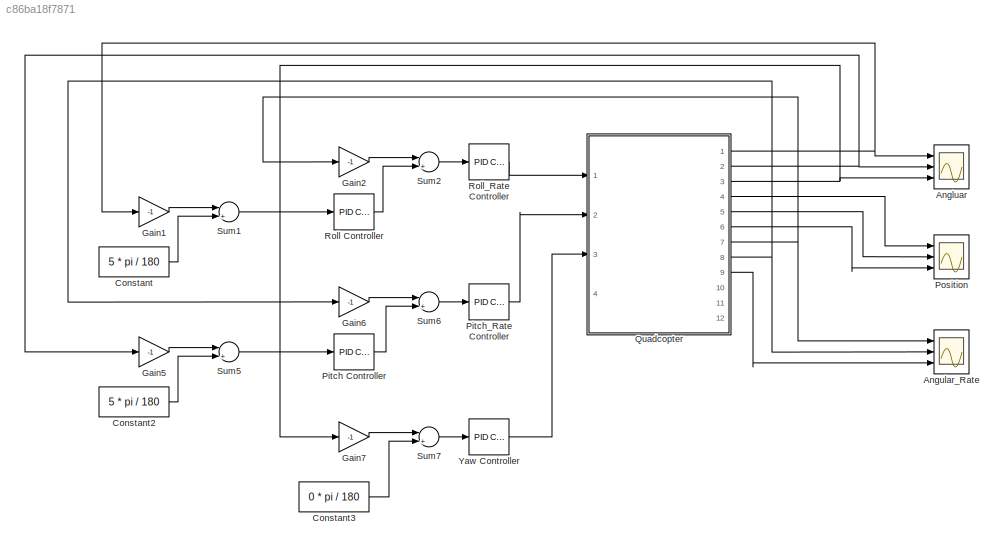
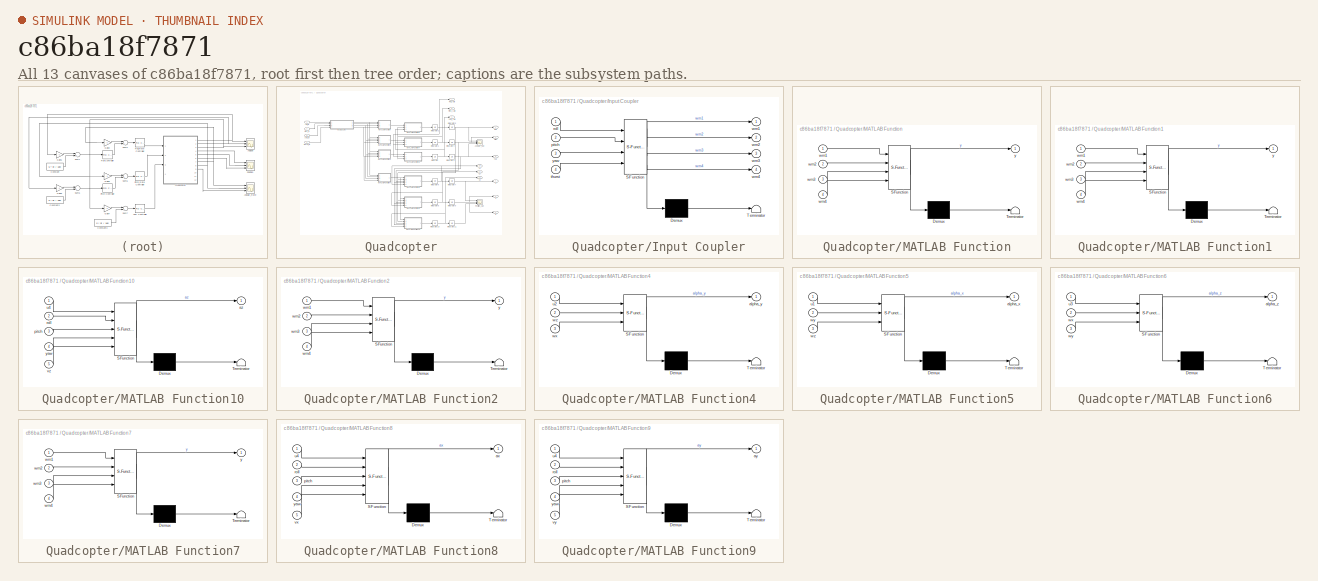
[diagram: thumbnail index - all 13 canvases of the model, root first then tree order]
MODEL slx_c86ba18f7871
KIND model
BLOCK [Scope] Angluar
  Floating = off
  NumInputPorts = 3
  Ports = [3]
  SaveName = ScopeData2
  ShowLegends = off
  YMax = 5~5~5
  YMin = -5~-5~-5
BLOCK [Scope] Angular_Rate
  Floating = off
  NumInputPorts = 3
  Ports = [3]
  SaveName = ScopeData3
  ShowLegends = off
  YMax = 5~5~5
  YMin = -5~-5~-5
  ZoomMode = yonly
BLOCK [Constant] Constant
  Value = 5 * pi / 180
BLOCK [Constant] Constant2
  Value = 5 * pi / 180
BLOCK [Constant] Constant3
  Value = 0 * pi / 180
BLOCK [Gain] Gain1
  Gain = -1
  OutDataTypeStr = Inherit: Inherit via internal rule
  ParamDataTypeStr = Inherit: Inherit via internal rule
  SaturateOnIntegerOverflow = off
BLOCK [Gain] Gain2
  Gain = -1
  OutDataTypeStr = Inherit: Inherit via internal rule
  ParamDataTypeStr = Inherit: Inherit via internal rule
  SaturateOnIntegerOverflow = off
BLOCK [Gain] Gain5
  Gain = -1
  OutDataTypeStr = Inherit: Inherit via internal rule
  ParamDataTypeStr = Inherit: Inherit via internal rule
  SaturateOnIntegerOverflow = off
BLOCK [Gain] Gain6
  Gain = -1
  OutDataTypeStr = Inherit: Inherit via internal rule
  ParamDataTypeStr = Inherit: Inherit via internal rule
  SaturateOnIntegerOverflow = off
BLOCK [Gain] Gain7
  Gain = -1
  OutDataTypeStr = Inherit: Inherit via internal rule
  ParamDataTypeStr = Inherit: Inherit via internal rule
  SaturateOnIntegerOverflow = off
BLOCK [Reference] Pitch Controller  REF=simulink/Continuous/PID Controller
  AntiWindupMode = none
  Controller = PID
  D = 0
  DOutDataTypeStr = Inherit: Inherit via internal rule
  DOutMax = []
  DOutMin = []
  DParamDataTypeStr = Inherit: Inherit via internal rule
  DParamMax = []
  DParamMin = []
  DifferentiatorICPrevScaledInput = 0
  DifferentiatorOutDataTypeStr = Inherit: Inherit via internal rule
  DifferentiatorOutMax = []
  DifferentiatorOutMin = []
  ExternalReset = none
  FilterContinuousStateAttributes = ''
  FilterMethod = Forward Euler
  FilterOutDataTypeStr = Inherit: Inherit via internal rule
  FilterOutMax = []
  FilterOutMin = []
  FilterRTWStateStorageClass = Auto
  FilterStateMustResolveToSignalObject = off
  Form = Parallel
  I = 0.05
  IOutDataTypeStr = Inherit: Inherit via internal rule
  IOutMax = []
  IOutMin = []
  IParamDataTypeStr = Inherit: Inherit via internal rule
  IParamMax = []
  IParamMin = []
  IgnoreLimit = off
  InitialConditionForFilter = 0
  InitialConditionForIntegrator = 0
  InitialConditionSource = internal
  IntegratorContinuousStateAttributes = ''
  IntegratorMethod = Forward Euler
  IntegratorOutDataTypeStr = Inherit: Inherit via internal rule
  IntegratorOutMax = []
  IntegratorOutMin = []
  IntegratorRTWStateStorageClass = Auto
  IntegratorStateMustResolveToSignalObject = off
  Kb = 1
  KbOutDataTypeStr = Inherit: Inherit via internal rule
  KbOutMax = []
  KbOutMin = []
  KbParamDataTypeStr = Inherit: Inherit via internal rule
  KbParamMax = []
  KbParamMin = []
  Kt = 1
  KtOutDataTypeStr = Inherit: Inherit via internal rule
  KtOutMax = []
  KtOutMin = []
  KtParamDataTypeStr = Inherit: Inherit via internal rule
  KtParamMax = []
  KtParamMin = []
  LimitOutput = off
  LinearizeAsGain = on
  LockScale = off
  LowerSaturationLimit = -inf
  N = 100
  NOutDataTypeStr = Inherit: Inherit via internal rule
  NOutMax = []
  NOutMin = []
  NParamDataTypeStr = Inherit: Inherit via internal rule
  NParamMax = []
  NParamMin = []
  P = 10
  POutDataTypeStr = Inherit: Inherit via internal rule
  POutMax = []
  POutMin = []
  PParamDataTypeStr = Inherit: Inherit via internal rule
  PParamMax = []
  PParamMin = []
  Ports = [1, 1]
  RndMeth = Floor
  SampleTime = -1
  SaturateOnIntegerOverflow = off
  SaturationOutDataTypeStr = Inherit: Same as input
  SaturationOutMax = []
  SaturationOutMin = []
  SourceBlock = simulink/Continuous/PID Controller
  SourceType = PID 1dof
  SumAccumDataTypeStr = Inherit: Inherit via internal rule
  SumDAccumDataTypeStr = Inherit: Inherit via internal rule
  SumDOutDataTypeStr = Inherit: Inherit via internal rule
  SumDOutMax = []
  SumDOutMin = []
  SumI1AccumDataTypeStr = Inherit: Inherit via internal rule
  SumI1OutDataTypeStr = Inherit: Inherit via internal rule
  SumI1OutMax = []
  SumI1OutMin = []
  SumI2AccumDataTypeStr = Inherit: Inherit via internal rule
  SumI2OutDataTypeStr = Inherit: Inherit via internal rule
  SumI2OutMax = []
  SumI2OutMin = []
  SumI3AccumDataTypeStr = Inherit: Inherit via internal rule
  SumI3OutDataTypeStr = Inherit: Inherit via internal rule
  SumI3OutMax = []
  SumI3OutMin = []
  SumOutDataTypeStr = Inherit: Inherit via internal rule
  SumOutMax = []
  SumOutMin = []
  TimeDomain = Continuous-time
  TrackingMode = off
  UpperSaturationLimit = inf
  UseFilter = on
  ZeroCross = on
BLOCK [Reference] Pitch_Rate Controller  REF=simulink/Continuous/PID Controller
  AntiWindupMode = none
  Controller = PID
  D = 0.1
  DOutDataTypeStr = Inherit: Inherit via internal rule
  DOutMax = []
  DOutMin = []
  DParamDataTypeStr = Inherit: Inherit via internal rule
  DParamMax = []
  DParamMin = []
  DifferentiatorICPrevScaledInput = 0
  DifferentiatorOutDataTypeStr = Inherit: Inherit via internal rule
  DifferentiatorOutMax = []
  DifferentiatorOutMin = []
  ExternalReset = none
  FilterContinuousStateAttributes = ''
  FilterMethod = Forward Euler
  FilterOutDataTypeStr = Inherit: Inherit via internal rule
  FilterOutMax = []
  FilterOutMin = []
  FilterRTWStateStorageClass = Auto
  FilterStateMustResolveToSignalObject = off
  Form = Parallel
  I = 0
  IOutDataTypeStr = Inherit: Inherit via internal rule
  IOutMax = []
  IOutMin = []
  IParamDataTypeStr = Inherit: Inherit via internal rule
  IParamMax = []
  IParamMin = []
  IgnoreLimit = off
  InitialConditionForFilter = 0
  InitialConditionForIntegrator = 0
  InitialConditionSource = internal
  IntegratorContinuousStateAttributes = ''
  IntegratorMethod = Forward Euler
  IntegratorOutDataTypeStr = Inherit: Inherit via internal rule
  IntegratorOutMax = []
  IntegratorOutMin = []
  IntegratorRTWStateStorageClass = Auto
  IntegratorStateMustResolveToSignalObject = off
  Kb = 1
  KbOutDataTypeStr = Inherit: Inherit via internal rule
  KbOutMax = []
  KbOutMin = []
  KbParamDataTypeStr = Inherit: Inherit via internal rule
  KbParamMax = []
  KbParamMin = []
  Kt = 1
  KtOutDataTypeStr = Inherit: Inherit via internal rule
  KtOutMax = []
  KtOutMin = []
  KtParamDataTypeStr = Inherit: Inherit via internal rule
  KtParamMax = []
  KtParamMin = []
  LimitOutput = off
  LinearizeAsGain = on
  LockScale = off
  LowerSaturationLimit = -inf
  N = 100
  NOutDataTypeStr = Inherit: Inherit via internal rule
  NOutMax = []
  NOutMin = []
  NParamDataTypeStr = Inherit: Inherit via internal rule
  NParamMax = []
  NParamMin = []
  P = 1
  POutDataTypeStr = Inherit: Inherit via internal rule
  POutMax = []
  POutMin = []
  PParamDataTypeStr = Inherit: Inherit via internal rule
  PParamMax = []
  PParamMin = []
  Ports = [1, 1]
  RndMeth = Floor
  SampleTime = -1
  SaturateOnIntegerOverflow = off
  SaturationOutDataTypeStr = Inherit: Same as input
  SaturationOutMax = []
  SaturationOutMin = []
  SourceBlock = simulink/Continuous/PID Controller
  SourceType = PID 1dof
  SumAccumDataTypeStr = Inherit: Inherit via internal rule
  SumDAccumDataTypeStr = Inherit: Inherit via internal rule
  SumDOutDataTypeStr = Inherit: Inherit via internal rule
  SumDOutMax = []
  SumDOutMin = []
  SumI1AccumDataTypeStr = Inherit: Inherit via internal rule
  SumI1OutDataTypeStr = Inherit: Inherit via internal rule
  SumI1OutMax = []
  SumI1OutMin = []
  SumI2AccumDataTypeStr = Inherit: Inherit via internal rule
  SumI2OutDataTypeStr = Inherit: Inherit via internal rule
  SumI2OutMax = []
  SumI2OutMin = []
  SumI3AccumDataTypeStr = Inherit: Inherit via internal rule
  SumI3OutDataTypeStr = Inherit: Inherit via internal rule
  SumI3OutMax = []
  SumI3OutMin = []
  SumOutDataTypeStr = Inherit: Inherit via internal rule
  SumOutMax = []
  SumOutMin = []
  TimeDomain = Continuous-time
  TrackingMode = off
  UpperSaturationLimit = inf
  UseFilter = on
  ZeroCross = on
BLOCK [Scope] Position
  Floating = off
  NumInputPorts = 3
  Ports = [3]
  SaveName = ScopeData4
  ShowLegends = off
  YMax = 5~5~5
  YMin = -5~-5~-5
  ZoomMode = yonly
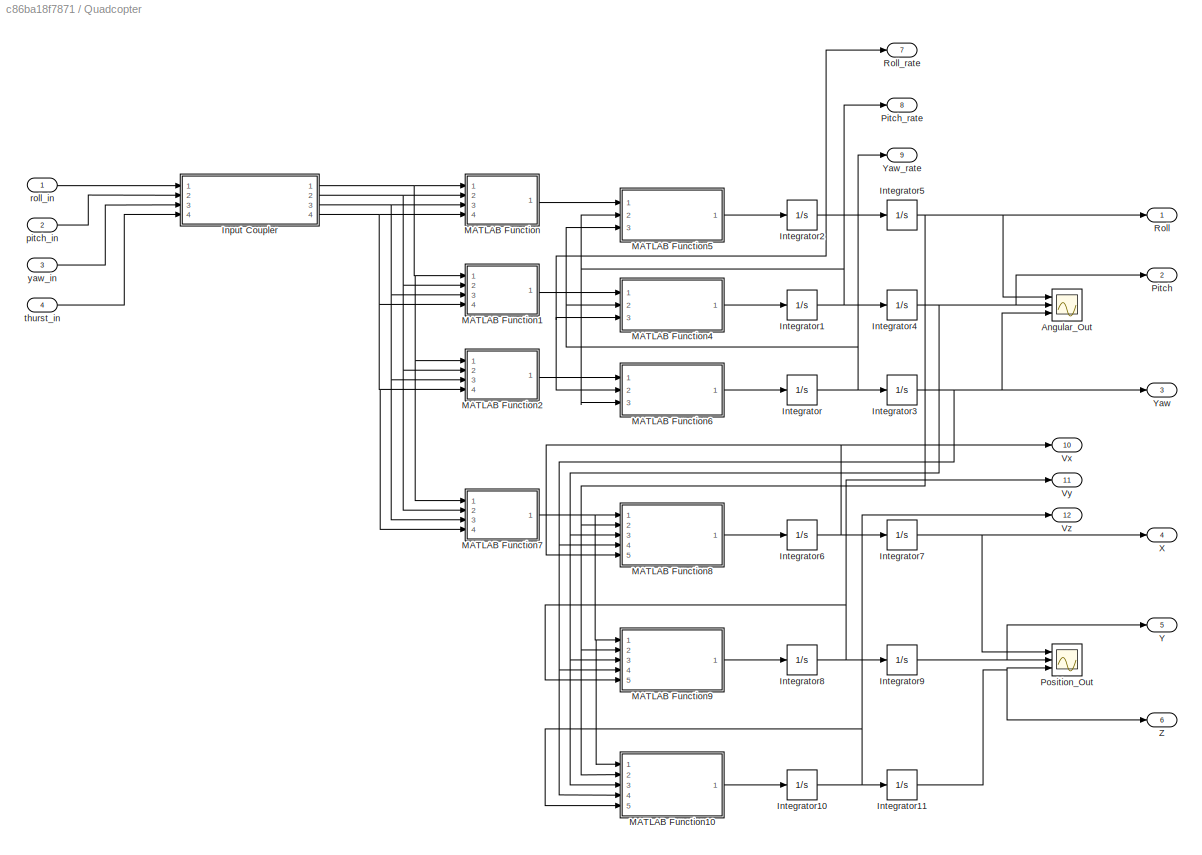
BLOCK [SubSystem] Quadcopter
  Ports = [4, 12]
  RequestExecContextInheritance = off
BLOCK [Scope] Quadcopter/Angular_Out
  Floating = off
  NumInputPorts = 3
  Ports = [3]
  ShowLegends = off
  YMax = 5~5~5
  YMin = -5~-5~-5
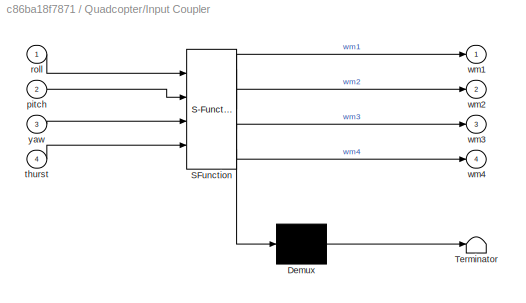
BLOCK [SubSystem] Quadcopter/Input Coupler
  ErrorFcn = Stateflow.Translate.translate
  PermitHierarchicalResolution = ExplicitOnly
  Ports = [4, 4]
  RequestExecContextInheritance = off
  SFBlockType = MATLAB Function
  TreatAsAtomicUnit = on
BLOCK [Demux] Quadcopter/Input Coupler/ Demux 
  Outputs = 1
  Ports = [1, 1]
BLOCK [S-Function] Quadcopter/Input Coupler/ SFunction 
  EnableBusSupport = on
  FunctionName = sf_sfun
  PortCounts = [4 5]
  Ports = [4, 5]
  Tag = Stateflow S-Function PID_quad_x_model 4
BLOCK [Terminator] Quadcopter/Input Coupler/ Terminator 
BLOCK [Inport] Quadcopter/Input Coupler/pitch
  IconDisplay = Port number
  Port = 2
BLOCK [Inport] Quadcopter/Input Coupler/roll
  IconDisplay = Port number
BLOCK [Inport] Quadcopter/Input Coupler/thurst
  IconDisplay = Port number
  Port = 4
BLOCK [Outport] Quadcopter/Input Coupler/wm1
  IconDisplay = Port number
BLOCK [Outport] Quadcopter/Input Coupler/wm2
  IconDisplay = Port number
  Port = 2
BLOCK [Outport] Quadcopter/Input Coupler/wm3
  IconDisplay = Port number
  Port = 3
BLOCK [Outport] Quadcopter/Input Coupler/wm4
  IconDisplay = Port number
  Port = 4
BLOCK [Inport] Quadcopter/Input Coupler/yaw
  IconDisplay = Port number
  Port = 3
BLOCK [Integrator] Quadcopter/Integrator
  Ports = [1, 1]
BLOCK [Integrator] Quadcopter/Integrator1
  Ports = [1, 1]
BLOCK [Integrator] Quadcopter/Integrator10
  Ports = [1, 1]
BLOCK [Integrator] Quadcopter/Integrator11
  Ports = [1, 1]
BLOCK [Integrator] Quadcopter/Integrator2
  Ports = [1, 1]
BLOCK [Integrator] Quadcopter/Integrator3
  Ports = [1, 1]
BLOCK [Integrator] Quadcopter/Integrator4
  Ports = [1, 1]
BLOCK [Integrator] Quadcopter/Integrator5
  Ports = [1, 1]
BLOCK [Integrator] Quadcopter/Integrator6
  Ports = [1, 1]
BLOCK [Integrator] Quadcopter/Integrator7
  Ports = [1, 1]
BLOCK [Integrator] Quadcopter/Integrator8
  Ports = [1, 1]
BLOCK [Integrator] Quadcopter/Integrator9
  Ports = [1, 1]
BLOCK [SubSystem] Quadcopter/MATLAB Function
  ErrorFcn = Stateflow.Translate.translate
  PermitHierarchicalResolution = ExplicitOnly
  Ports = [4, 1]
  RequestExecContextInheritance = off
  SFBlockType = MATLAB Function
  TreatAsAtomicUnit = on
BLOCK [Demux] Quadcopter/MATLAB Function/ Demux 
  Outputs = 1
  Ports = [1, 1]
BLOCK [S-Function] Quadcopter/MATLAB Function/ SFunction 
  EnableBusSupport = on
  FunctionName = sf_sfun
  PortCounts = [4 2]
  Ports = [4, 2]
  Tag = Stateflow S-Function PID_quad_x_model 2
BLOCK [Terminator] Quadcopter/MATLAB Function/ Terminator 
BLOCK [Inport] Quadcopter/MATLAB Function/wm1
  IconDisplay = Port number
BLOCK [Inport] Quadcopter/MATLAB Function/wm2
  IconDisplay = Port number
  Port = 2
BLOCK [Inport] Quadcopter/MATLAB Function/wm3
  IconDisplay = Port number
  Port = 3
BLOCK [Inport] Quadcopter/MATLAB Function/wm4
  IconDisplay = Port number
  Port = 4
BLOCK [Outport] Quadcopter/MATLAB Function/y
  IconDisplay = Port number
BLOCK [SubSystem] Quadcopter/MATLAB Function1
  ErrorFcn = Stateflow.Translate.translate
  PermitHierarchicalResolution = ExplicitOnly
  Ports = [4, 1]
  RequestExecContextInheritance = off
  SFBlockType = MATLAB Function
  TreatAsAtomicUnit = on
BLOCK [Demux] Quadcopter/MATLAB Function1/ Demux 
  Outputs = 1
  Ports = [1, 1]
BLOCK [S-Function] Quadcopter/MATLAB Function1/ SFunction 
  EnableBusSupport = on
  FunctionName = sf_sfun
  PortCounts = [4 2]
  Ports = [4, 2]
  Tag = Stateflow S-Function PID_quad_x_model 1
BLOCK [Terminator] Quadcopter/MATLAB Function1/ Terminator 
BLOCK [Inport] Quadcopter/MATLAB Function1/wm1
  IconDisplay = Port number
BLOCK [Inport] Quadcopter/MATLAB Function1/wm2
  IconDisplay = Port number
  Port = 2
BLOCK [Inport] Quadcopter/MATLAB Function1/wm3
  IconDisplay = Port number
  Port = 3
BLOCK [Inport] Quadcopter/MATLAB Function1/wm4
  IconDisplay = Port number
  Port = 4
BLOCK [Outport] Quadcopter/MATLAB Function1/y
  IconDisplay = Port number
BLOCK [SubSystem] Quadcopter/MATLAB Function10
  ErrorFcn = Stateflow.Translate.translate
  PermitHierarchicalResolution = ExplicitOnly
  Ports = [5, 1]
  RequestExecContextInheritance = off
  SFBlockType = MATLAB Function
  TreatAsAtomicUnit = on
BLOCK [Demux] Quadcopter/MATLAB Function10/ Demux 
  Outputs = 1
  Ports = [1, 1]
BLOCK [S-Function] Quadcopter/MATLAB Function10/ SFunction 
  EnableBusSupport = on
  FunctionName = sf_sfun
  PortCounts = [5 2]
  Ports = [5, 2]
  Tag = Stateflow S-Function PID_quad_x_model 11
BLOCK [Terminator] Quadcopter/MATLAB Function10/ Terminator 
BLOCK [Outport] Quadcopter/MATLAB Function10/az
  IconDisplay = Port number
BLOCK [Inport] Quadcopter/MATLAB Function10/pitch
  IconDisplay = Port number
  Port = 3
BLOCK [Inport] Quadcopter/MATLAB Function10/roll
  IconDisplay = Port number
  Port = 2
BLOCK [Inport] Quadcopter/MATLAB Function10/u4
  IconDisplay = Port number
BLOCK [Inport] Quadcopter/MATLAB Function10/vz
  IconDisplay = Port number
  Port = 5
BLOCK [Inport] Quadcopter/MATLAB Function10/yaw
  IconDisplay = Port number
  Port = 4
BLOCK [SubSystem] Quadcopter/MATLAB Function2
  ErrorFcn = Stateflow.Translate.translate
  PermitHierarchicalResolution = ExplicitOnly
  Ports = [4, 1]
  RequestExecContextInheritance = off
  SFBlockType = MATLAB Function
  TreatAsAtomicUnit = on
BLOCK [Demux] Quadcopter/MATLAB Function2/ Demux 
  Outputs = 1
  Ports = [1, 1]
BLOCK [S-Function] Quadcopter/MATLAB Function2/ SFunction 
  EnableBusSupport = on
  FunctionName = sf_sfun
  PortCounts = [4 2]
  Ports = [4, 2]
  Tag = Stateflow S-Function PID_quad_x_model 3
BLOCK [Terminator] Quadcopter/MATLAB Function2/ Terminator 
BLOCK [Inport] Quadcopter/MATLAB Function2/wm1
  IconDisplay = Port number
BLOCK [Inport] Quadcopter/MATLAB Function2/wm2
  IconDisplay = Port number
  Port = 2
BLOCK [Inport] Quadcopter/MATLAB Function2/wm3
  IconDisplay = Port number
  Port = 3
BLOCK [Inport] Quadcopter/MATLAB Function2/wm4
  IconDisplay = Port number
  Port = 4
BLOCK [Outport] Quadcopter/MATLAB Function2/y
  IconDisplay = Port number
BLOCK [SubSystem] Quadcopter/MATLAB Function4
  ErrorFcn = Stateflow.Translate.translate
  PermitHierarchicalResolution = ExplicitOnly
  Ports = [3, 1]
  RequestExecContextInheritance = off
  SFBlockType = MATLAB Function
  TreatAsAtomicUnit = on
BLOCK [Demux] Quadcopter/MATLAB Function4/ Demux 
  Outputs = 1
  Ports = [1, 1]
BLOCK [S-Function] Quadcopter/MATLAB Function4/ SFunction 
  EnableBusSupport = on
  FunctionName = sf_sfun
  PortCounts = [3 2]
  Ports = [3, 2]
  Tag = Stateflow S-Function PID_quad_x_model 5
BLOCK [Terminator] Quadcopter/MATLAB Function4/ Terminator 
BLOCK [Outport] Quadcopter/MATLAB Function4/alpha_y
  IconDisplay = Port number
BLOCK [Inport] Quadcopter/MATLAB Function4/u2
  IconDisplay = Port number
BLOCK [Inport] Quadcopter/MATLAB Function4/wx
  IconDisplay = Port number
  Port = 3
BLOCK [Inport] Quadcopter/MATLAB Function4/wz
  IconDisplay = Port number
  Port = 2
BLOCK [SubSystem] Quadcopter/MATLAB Function5
  ErrorFcn = Stateflow.Translate.translate
  PermitHierarchicalResolution = ExplicitOnly
  Ports = [3, 1]
  RequestExecContextInheritance = off
  SFBlockType = MATLAB Function
  TreatAsAtomicUnit = on
BLOCK [Demux] Quadcopter/MATLAB Function5/ Demux 
  Outputs = 1
  Ports = [1, 1]
BLOCK [S-Function] Quadcopter/MATLAB Function5/ SFunction 
  EnableBusSupport = on
  FunctionName = sf_sfun
  PortCounts = [3 2]
  Ports = [3, 2]
  Tag = Stateflow S-Function PID_quad_x_model 6
BLOCK [Terminator] Quadcopter/MATLAB Function5/ Terminator 
BLOCK [Outport] Quadcopter/MATLAB Function5/alpha_x
  IconDisplay = Port number
BLOCK [Inport] Quadcopter/MATLAB Function5/u1
  IconDisplay = Port number
BLOCK [Inport] Quadcopter/MATLAB Function5/wy
  IconDisplay = Port number
  Port = 2
BLOCK [Inport] Quadcopter/MATLAB Function5/wz
  IconDisplay = Port number
  Port = 3
BLOCK [SubSystem] Quadcopter/MATLAB Function6
  ErrorFcn = Stateflow.Translate.translate
  PermitHierarchicalResolution = ExplicitOnly
  Ports = [3, 1]
  RequestExecContextInheritance = off
  SFBlockType = MATLAB Function
  TreatAsAtomicUnit = on
BLOCK [Demux] Quadcopter/MATLAB Function6/ Demux 
  Outputs = 1
  Ports = [1, 1]
BLOCK [S-Function] Quadcopter/MATLAB Function6/ SFunction 
  EnableBusSupport = on
  FunctionName = sf_sfun
  PortCounts = [3 2]
  Ports = [3, 2]
  Tag = Stateflow S-Function PID_quad_x_model 7
BLOCK [Terminator] Quadcopter/MATLAB Function6/ Terminator 
BLOCK [Outport] Quadcopter/MATLAB Function6/alpha_z
  IconDisplay = Port number
BLOCK [Inport] Quadcopter/MATLAB Function6/u3
  IconDisplay = Port number
BLOCK [Inport] Quadcopter/MATLAB Function6/wx
  IconDisplay = Port number
  Port = 2
BLOCK [Inport] Quadcopter/MATLAB Function6/wy
  IconDisplay = Port number
  Port = 3
BLOCK [SubSystem] Quadcopter/MATLAB Function7
  ErrorFcn = Stateflow.Translate.translate
  PermitHierarchicalResolution = ExplicitOnly
  Ports = [4, 1]
  RequestExecContextInheritance = off
  SFBlockType = MATLAB Function
  TreatAsAtomicUnit = on
BLOCK [Demux] Quadcopter/MATLAB Function7/ Demux 
  Outputs = 1
  Ports = [1, 1]
BLOCK [S-Function] Quadcopter/MATLAB Function7/ SFunction 
  EnableBusSupport = on
  FunctionName = sf_sfun
  PortCounts = [4 2]
  Ports = [4, 2]
  Tag = Stateflow S-Function PID_quad_x_model 8
BLOCK [Terminator] Quadcopter/MATLAB Function7/ Terminator 
BLOCK [Inport] Quadcopter/MATLAB Function7/wm1
  IconDisplay = Port number
BLOCK [Inport] Quadcopter/MATLAB Function7/wm2
  IconDisplay = Port number
  Port = 2
BLOCK [Inport] Quadcopter/MATLAB Function7/wm3
  IconDisplay = Port number
  Port = 3
BLOCK [Inport] Quadcopter/MATLAB Function7/wm4
  IconDisplay = Port number
  Port = 4
BLOCK [Outport] Quadcopter/MATLAB Function7/y
  IconDisplay = Port number
BLOCK [SubSystem] Quadcopter/MATLAB Function8
  ErrorFcn = Stateflow.Translate.translate
  PermitHierarchicalResolution = ExplicitOnly
  Ports = [5, 1]
  RequestExecContextInheritance = off
  SFBlockType = MATLAB Function
  TreatAsAtomicUnit = on
BLOCK [Demux] Quadcopter/MATLAB Function8/ Demux 
  Outputs = 1
  Ports = [1, 1]
BLOCK [S-Function] Quadcopter/MATLAB Function8/ SFunction 
  EnableBusSupport = on
  FunctionName = sf_sfun
  PortCounts = [5 2]
  Ports = [5, 2]
  Tag = Stateflow S-Function PID_quad_x_model 9
BLOCK [Terminator] Quadcopter/MATLAB Function8/ Terminator 
BLOCK [Outport] Quadcopter/MATLAB Function8/ax
  IconDisplay = Port number
BLOCK [Inport] Quadcopter/MATLAB Function8/pitch
  IconDisplay = Port number
  Port = 3
BLOCK [Inport] Quadcopter/MATLAB Function8/roll
  IconDisplay = Port number
  Port = 2
BLOCK [Inport] Quadcopter/MATLAB Function8/u4
  IconDisplay = Port number
BLOCK [Inport] Quadcopter/MATLAB Function8/vx
  IconDisplay = Port number
  Port = 5
BLOCK [Inport] Quadcopter/MATLAB Function8/yaw
  IconDisplay = Port number
  Port = 4
BLOCK [SubSystem] Quadcopter/MATLAB Function9
  ErrorFcn = Stateflow.Translate.translate
  PermitHierarchicalResolution = ExplicitOnly
  Ports = [5, 1]
  RequestExecContextInheritance = off
  SFBlockType = MATLAB Function
  TreatAsAtomicUnit = on
BLOCK [Demux] Quadcopter/MATLAB Function9/ Demux 
  Outputs = 1
  Ports = [1, 1]
BLOCK [S-Function] Quadcopter/MATLAB Function9/ SFunction 
  EnableBusSupport = on
  FunctionName = sf_sfun
  PortCounts = [5 2]
  Ports = [5, 2]
  Tag = Stateflow S-Function PID_quad_x_model 10
BLOCK [Terminator] Quadcopter/MATLAB Function9/ Terminator 
BLOCK [Outport] Quadcopter/MATLAB Function9/ay
  IconDisplay = Port number
BLOCK [Inport] Quadcopter/MATLAB Function9/pitch
  IconDisplay = Port number
  Port = 3
BLOCK [Inport] Quadcopter/MATLAB Function9/roll
  IconDisplay = Port number
  Port = 2
BLOCK [Inport] Quadcopter/MATLAB Function9/u4
  IconDisplay = Port number
BLOCK [Inport] Quadcopter/MATLAB Function9/vy
  IconDisplay = Port number
  Port = 5
BLOCK [Inport] Quadcopter/MATLAB Function9/yaw
  IconDisplay = Port number
  Port = 4
BLOCK [Outport] Quadcopter/Pitch
  IconDisplay = Port number
  Port = 2
BLOCK [Outport] Quadcopter/Pitch_rate
  IconDisplay = Port number
  Port = 8
BLOCK [Scope] Quadcopter/Position_Out 
  Floating = off
  NumInputPorts = 3
  Ports = [3]
  SaveName = ScopeData1
  ShowLegends = off
  YMax = 5~5~5
  YMin = -5~-5~-5
BLOCK [Outport] Quadcopter/Roll
  IconDisplay = Port number
BLOCK [Outport] Quadcopter/Roll_rate
  IconDisplay = Port number
  Port = 7
BLOCK [Outport] Quadcopter/Vx
  IconDisplay = Port number
  Port = 10
BLOCK [Outport] Quadcopter/Vy
  IconDisplay = Port number
  Port = 11
BLOCK [Outport] Quadcopter/Vz
  IconDisplay = Port number
  Port = 12
BLOCK [Outport] Quadcopter/X
  IconDisplay = Port number
  Port = 4
BLOCK [Outport] Quadcopter/Y
  IconDisplay = Port number
  Port = 5
BLOCK [Outport] Quadcopter/Yaw
  IconDisplay = Port number
  Port = 3
BLOCK [Outport] Quadcopter/Yaw_rate
  IconDisplay = Port number
  Port = 9
BLOCK [Outport] Quadcopter/Z
  IconDisplay = Port number
  Port = 6
BLOCK [Inport] Quadcopter/pitch_in
  IconDisplay = Port number
  Port = 2
BLOCK [Inport] Quadcopter/roll_in
  IconDisplay = Port number
BLOCK [Inport] Quadcopter/thurst_in
  IconDisplay = Port number
  Port = 4
BLOCK [Inport] Quadcopter/yaw_in
  IconDisplay = Port number
  Port = 3
BLOCK [Reference] Roll Controller  REF=simulink/Continuous/PID Controller
  AntiWindupMode = none
  Controller = PID
  D = 0
  DOutDataTypeStr = Inherit: Inherit via internal rule
  DOutMax = []
  DOutMin = []
  DParamDataTypeStr = Inherit: Inherit via internal rule
  DParamMax = []
  DParamMin = []
  DifferentiatorICPrevScaledInput = 0
  DifferentiatorOutDataTypeStr = Inherit: Inherit via internal rule
  DifferentiatorOutMax = []
  DifferentiatorOutMin = []
  ExternalReset = none
  FilterContinuousStateAttributes = ''
  FilterMethod = Forward Euler
  FilterOutDataTypeStr = Inherit: Inherit via internal rule
  FilterOutMax = []
  FilterOutMin = []
  FilterRTWStateStorageClass = Auto
  FilterStateMustResolveToSignalObject = off
  Form = Parallel
  I = 0.05
  IOutDataTypeStr = Inherit: Inherit via internal rule
  IOutMax = []
  IOutMin = []
  IParamDataTypeStr = Inherit: Inherit via internal rule
  IParamMax = []
  IParamMin = []
  IgnoreLimit = off
  InitialConditionForFilter = 0
  InitialConditionForIntegrator = 0
  InitialConditionSource = internal
  IntegratorContinuousStateAttributes = ''
  IntegratorMethod = Forward Euler
  IntegratorOutDataTypeStr = Inherit: Inherit via internal rule
  IntegratorOutMax = []
  IntegratorOutMin = []
  IntegratorRTWStateStorageClass = Auto
  IntegratorStateMustResolveToSignalObject = off
  Kb = 1
  KbOutDataTypeStr = Inherit: Inherit via internal rule
  KbOutMax = []
  KbOutMin = []
  KbParamDataTypeStr = Inherit: Inherit via internal rule
  KbParamMax = []
  KbParamMin = []
  Kt = 1
  KtOutDataTypeStr = Inherit: Inherit via internal rule
  KtOutMax = []
  KtOutMin = []
  KtParamDataTypeStr = Inherit: Inherit via internal rule
  KtParamMax = []
  KtParamMin = []
  LimitOutput = off
  LinearizeAsGain = on
  LockScale = off
  LowerSaturationLimit = -inf
  N = 100
  NOutDataTypeStr = Inherit: Inherit via internal rule
  NOutMax = []
  NOutMin = []
  NParamDataTypeStr = Inherit: Inherit via internal rule
  NParamMax = []
  NParamMin = []
  P = 10
  POutDataTypeStr = Inherit: Inherit via internal rule
  POutMax = []
  POutMin = []
  PParamDataTypeStr = Inherit: Inherit via internal rule
  PParamMax = []
  PParamMin = []
  Ports = [1, 1]
  RndMeth = Floor
  SampleTime = -1
  SaturateOnIntegerOverflow = off
  SaturationOutDataTypeStr = Inherit: Same as input
  SaturationOutMax = []
  SaturationOutMin = []
  SourceBlock = simulink/Continuous/PID Controller
  SourceType = PID 1dof
  SumAccumDataTypeStr = Inherit: Inherit via internal rule
  SumDAccumDataTypeStr = Inherit: Inherit via internal rule
  SumDOutDataTypeStr = Inherit: Inherit via internal rule
  SumDOutMax = []
  SumDOutMin = []
  SumI1AccumDataTypeStr = Inherit: Inherit via internal rule
  SumI1OutDataTypeStr = Inherit: Inherit via internal rule
  SumI1OutMax = []
  SumI1OutMin = []
  SumI2AccumDataTypeStr = Inherit: Inherit via internal rule
  SumI2OutDataTypeStr = Inherit: Inherit via internal rule
  SumI2OutMax = []
  SumI2OutMin = []
  SumI3AccumDataTypeStr = Inherit: Inherit via internal rule
  SumI3OutDataTypeStr = Inherit: Inherit via internal rule
  SumI3OutMax = []
  SumI3OutMin = []
  SumOutDataTypeStr = Inherit: Inherit via internal rule
  SumOutMax = []
  SumOutMin = []
  TimeDomain = Continuous-time
  TrackingMode = off
  UpperSaturationLimit = inf
  UseFilter = on
  ZeroCross = on
BLOCK [Reference] Roll_Rate Controller  REF=simulink/Continuous/PID Controller
  AntiWindupMode = none
  Controller = PID
  D = 0.1
  DOutDataTypeStr = Inherit: Inherit via internal rule
  DOutMax = []
  DOutMin = []
  DParamDataTypeStr = Inherit: Inherit via internal rule
  DParamMax = []
  DParamMin = []
  DifferentiatorICPrevScaledInput = 0
  DifferentiatorOutDataTypeStr = Inherit: Inherit via internal rule
  DifferentiatorOutMax = []
  DifferentiatorOutMin = []
  ExternalReset = none
  FilterContinuousStateAttributes = ''
  FilterMethod = Forward Euler
  FilterOutDataTypeStr = Inherit: Inherit via internal rule
  FilterOutMax = []
  FilterOutMin = []
  FilterRTWStateStorageClass = Auto
  FilterStateMustResolveToSignalObject = off
  Form = Parallel
  I = 0
  IOutDataTypeStr = Inherit: Inherit via internal rule
  IOutMax = []
  IOutMin = []
  IParamDataTypeStr = Inherit: Inherit via internal rule
  IParamMax = []
  IParamMin = []
  IgnoreLimit = off
  InitialConditionForFilter = 0
  InitialConditionForIntegrator = 0
  InitialConditionSource = internal
  IntegratorContinuousStateAttributes = ''
  IntegratorMethod = Forward Euler
  IntegratorOutDataTypeStr = Inherit: Inherit via internal rule
  IntegratorOutMax = []
  IntegratorOutMin = []
  IntegratorRTWStateStorageClass = Auto
  IntegratorStateMustResolveToSignalObject = off
  Kb = 1
  KbOutDataTypeStr = Inherit: Inherit via internal rule
  KbOutMax = []
  KbOutMin = []
  KbParamDataTypeStr = Inherit: Inherit via internal rule
  KbParamMax = []
  KbParamMin = []
  Kt = 1
  KtOutDataTypeStr = Inherit: Inherit via internal rule
  KtOutMax = []
  KtOutMin = []
  KtParamDataTypeStr = Inherit: Inherit via internal rule
  KtParamMax = []
  KtParamMin = []
  LimitOutput = off
  LinearizeAsGain = on
  LockScale = off
  LowerSaturationLimit = -inf
  N = 100
  NOutDataTypeStr = Inherit: Inherit via internal rule
  NOutMax = []
  NOutMin = []
  NParamDataTypeStr = Inherit: Inherit via internal rule
  NParamMax = []
  NParamMin = []
  P = 1
  POutDataTypeStr = Inherit: Inherit via internal rule
  POutMax = []
  POutMin = []
  PParamDataTypeStr = Inherit: Inherit via internal rule
  PParamMax = []
  PParamMin = []
  Ports = [1, 1]
  RndMeth = Floor
  SampleTime = -1
  SaturateOnIntegerOverflow = off
  SaturationOutDataTypeStr = Inherit: Same as input
  SaturationOutMax = []
  SaturationOutMin = []
  SourceBlock = simulink/Continuous/PID Controller
  SourceType = PID 1dof
  SumAccumDataTypeStr = Inherit: Inherit via internal rule
  SumDAccumDataTypeStr = Inherit: Inherit via internal rule
  SumDOutDataTypeStr = Inherit: Inherit via internal rule
  SumDOutMax = []
  SumDOutMin = []
  SumI1AccumDataTypeStr = Inherit: Inherit via internal rule
  SumI1OutDataTypeStr = Inherit: Inherit via internal rule
  SumI1OutMax = []
  SumI1OutMin = []
  SumI2AccumDataTypeStr = Inherit: Inherit via internal rule
  SumI2OutDataTypeStr = Inherit: Inherit via internal rule
  SumI2OutMax = []
  SumI2OutMin = []
  SumI3AccumDataTypeStr = Inherit: Inherit via internal rule
  SumI3OutDataTypeStr = Inherit: Inherit via internal rule
  SumI3OutMax = []
  SumI3OutMin = []
  SumOutDataTypeStr = Inherit: Inherit via internal rule
  SumOutMax = []
  SumOutMin = []
  TimeDomain = Continuous-time
  TrackingMode = off
  UpperSaturationLimit = inf
  UseFilter = on
  ZeroCross = on
BLOCK [Sum] Sum1
  InputSameDT = off
  Inputs = |++
  OutDataTypeStr = Inherit: Inherit via internal rule
  Ports = [2, 1]
  SaturateOnIntegerOverflow = off
BLOCK [Sum] Sum2
  InputSameDT = off
  Inputs = |++
  OutDataTypeStr = Inherit: Inherit via internal rule
  Ports = [2, 1]
  SaturateOnIntegerOverflow = off
BLOCK [Sum] Sum5
  InputSameDT = off
  Inputs = |++
  OutDataTypeStr = Inherit: Inherit via internal rule
  Ports = [2, 1]
  SaturateOnIntegerOverflow = off
BLOCK [Sum] Sum6
  InputSameDT = off
  Inputs = |++
  OutDataTypeStr = Inherit: Inherit via internal rule
  Ports = [2, 1]
  SaturateOnIntegerOverflow = off
BLOCK [Sum] Sum7
  InputSameDT = off
  Inputs = |++
  OutDataTypeStr = Inherit: Inherit via internal rule
  Ports = [2, 1]
  SaturateOnIntegerOverflow = off
BLOCK [Reference] Yaw Controller  REF=simulink/Continuous/PID Controller
  AntiWindupMode = none
  Controller = PID
  D = 1.25
  DOutDataTypeStr = Inherit: Inherit via internal rule
  DOutMax = []
  DOutMin = []
  DParamDataTypeStr = Inherit: Inherit via internal rule
  DParamMax = []
  DParamMin = []
  DifferentiatorICPrevScaledInput = 0
  DifferentiatorOutDataTypeStr = Inherit: Inherit via internal rule
  DifferentiatorOutMax = []
  DifferentiatorOutMin = []
  ExternalReset = none
  FilterContinuousStateAttributes = ''
  FilterMethod = Forward Euler
  FilterOutDataTypeStr = Inherit: Inherit via internal rule
  FilterOutMax = []
  FilterOutMin = []
  FilterRTWStateStorageClass = Auto
  FilterStateMustResolveToSignalObject = off
  Form = Parallel
  I = 0
  IOutDataTypeStr = Inherit: Inherit via internal rule
  IOutMax = []
  IOutMin = []
  IParamDataTypeStr = Inherit: Inherit via internal rule
  IParamMax = []
  IParamMin = []
  IgnoreLimit = off
  InitialConditionForFilter = 0
  InitialConditionForIntegrator = 0
  InitialConditionSource = internal
  IntegratorContinuousStateAttributes = ''
  IntegratorMethod = Forward Euler
  IntegratorOutDataTypeStr = Inherit: Inherit via internal rule
  IntegratorOutMax = []
  IntegratorOutMin = []
  IntegratorRTWStateStorageClass = Auto
  IntegratorStateMustResolveToSignalObject = off
  Kb = 1
  KbOutDataTypeStr = Inherit: Inherit via internal rule
  KbOutMax = []
  KbOutMin = []
  KbParamDataTypeStr = Inherit: Inherit via internal rule
  KbParamMax = []
  KbParamMin = []
  Kt = 1
  KtOutDataTypeStr = Inherit: Inherit via internal rule
  KtOutMax = []
  KtOutMin = []
  KtParamDataTypeStr = Inherit: Inherit via internal rule
  KtParamMax = []
  KtParamMin = []
  LimitOutput = off
  LinearizeAsGain = on
  LockScale = off
  LowerSaturationLimit = -inf
  N = 100
  NOutDataTypeStr = Inherit: Inherit via internal rule
  NOutMax = []
  NOutMin = []
  NParamDataTypeStr = Inherit: Inherit via internal rule
  NParamMax = []
  NParamMin = []
  P = 1
  POutDataTypeStr = Inherit: Inherit via internal rule
  POutMax = []
  POutMin = []
  PParamDataTypeStr = Inherit: Inherit via internal rule
  PParamMax = []
  PParamMin = []
  Ports = [1, 1]
  RndMeth = Floor
  SampleTime = -1
  SaturateOnIntegerOverflow = off
  SaturationOutDataTypeStr = Inherit: Same as input
  SaturationOutMax = []
  SaturationOutMin = []
  SourceBlock = simulink/Continuous/PID Controller
  SourceType = PID 1dof
  SumAccumDataTypeStr = Inherit: Inherit via internal rule
  SumDAccumDataTypeStr = Inherit: Inherit via internal rule
  SumDOutDataTypeStr = Inherit: Inherit via internal rule
  SumDOutMax = []
  SumDOutMin = []
  SumI1AccumDataTypeStr = Inherit: Inherit via internal rule
  SumI1OutDataTypeStr = Inherit: Inherit via internal rule
  SumI1OutMax = []
  SumI1OutMin = []
  SumI2AccumDataTypeStr = Inherit: Inherit via internal rule
  SumI2OutDataTypeStr = Inherit: Inherit via internal rule
  SumI2OutMax = []
  SumI2OutMin = []
  SumI3AccumDataTypeStr = Inherit: Inherit via internal rule
  SumI3OutDataTypeStr = Inherit: Inherit via internal rule
  SumI3OutMax = []
  SumI3OutMin = []
  SumOutDataTypeStr = Inherit: Inherit via internal rule
  SumOutMax = []
  SumOutMin = []
  TimeDomain = Continuous-time
  TrackingMode = off
  UpperSaturationLimit = inf
  UseFilter = on
  ZeroCross = on
LINE Constant2:1 -> Sum5:2
LINE Constant3:1 -> Sum7:2
LINE Constant:1 -> Sum1:2
LINE Gain1:1 -> Sum1:1
LINE Gain2:1 -> Sum2:1
LINE Gain5:1 -> Sum5:1
LINE Gain6:1 -> Sum6:1
LINE Gain7:1 -> Sum7:1
LINE Pitch Controller:1 -> Sum6:2
LINE Pitch_Rate Controller:1 -> Quadcopter:2
NET Quadcopter/Input Coupler:1 -> Quadcopter/MATLAB Function1:1, Quadcopter/MATLAB Function2:1, Quadcopter/MATLAB Function7:1, Quadcopter/MATLAB Function:1
NET Quadcopter/Input Coupler:2 -> Quadcopter/MATLAB Function1:2, Quadcopter/MATLAB Function2:2, Quadcopter/MATLAB Function7:2, Quadcopter/MATLAB Function:2
NET Quadcopter/Input Coupler:3 -> Quadcopter/MATLAB Function1:3, Quadcopter/MATLAB Function2:3, Quadcopter/MATLAB Function7:3, Quadcopter/MATLAB Function:3
NET Quadcopter/Input Coupler:4 -> Quadcopter/MATLAB Function1:4, Quadcopter/MATLAB Function2:4, Quadcopter/MATLAB Function7:4, Quadcopter/MATLAB Function:4
NET Quadcopter/Integrator10:1 -> Quadcopter/Integrator11:1, Quadcopter/MATLAB Function10:5, Quadcopter/Vz:1
NET Quadcopter/Integrator11:1 -> Quadcopter/Position_Out :3, Quadcopter/Z:1
NET Quadcopter/Integrator1:1 -> Quadcopter/Integrator4:1, Quadcopter/MATLAB Function5:2, Quadcopter/MATLAB Function6:3, Quadcopter/Pitch_rate:1
NET Quadcopter/Integrator2:1 -> Quadcopter/Integrator5:1, Quadcopter/MATLAB Function4:3, Quadcopter/MATLAB Function6:2, Quadcopter/Roll_rate:1
NET Quadcopter/Integrator3:1 -> Quadcopter/Angular_Out:3, Quadcopter/MATLAB Function10:4, Quadcopter/MATLAB Function8:4, Quadcopter/MATLAB Function9:4, Quadcopter/Yaw:1
NET Quadcopter/Integrator4:1 -> Quadcopter/Angular_Out:2, Quadcopter/MATLAB Function10:3, Quadcopter/MATLAB Function8:3, Quadcopter/MATLAB Function9:3, Quadcopter/Pitch:1
NET Quadcopter/Integrator5:1 -> Quadcopter/Angular_Out:1, Quadcopter/MATLAB Function10:2, Quadcopter/MATLAB Function8:2, Quadcopter/MATLAB Function9:2, Quadcopter/Roll:1
NET Quadcopter/Integrator6:1 -> Quadcopter/Integrator7:1, Quadcopter/MATLAB Function8:5, Quadcopter/Vx:1
NET Quadcopter/Integrator7:1 -> Quadcopter/Position_Out :1, Quadcopter/X:1
NET Quadcopter/Integrator8:1 -> Quadcopter/Integrator9:1, Quadcopter/MATLAB Function9:5, Quadcopter/Vy:1
NET Quadcopter/Integrator9:1 -> Quadcopter/Position_Out :2, Quadcopter/Y:1
NET Quadcopter/Integrator:1 -> Quadcopter/Integrator3:1, Quadcopter/MATLAB Function4:2, Quadcopter/MATLAB Function5:3, Quadcopter/Yaw_rate:1
LINE Quadcopter/MATLAB Function10:1 -> Quadcopter/Integrator10:1
LINE Quadcopter/MATLAB Function1:1 -> Quadcopter/MATLAB Function4:1
LINE Quadcopter/MATLAB Function2:1 -> Quadcopter/MATLAB Function6:1
LINE Quadcopter/MATLAB Function4:1 -> Quadcopter/Integrator1:1
LINE Quadcopter/MATLAB Function5:1 -> Quadcopter/Integrator2:1
LINE Quadcopter/MATLAB Function6:1 -> Quadcopter/Integrator:1
NET Quadcopter/MATLAB Function7:1 -> Quadcopter/MATLAB Function10:1, Quadcopter/MATLAB Function8:1, Quadcopter/MATLAB Function9:1
LINE Quadcopter/MATLAB Function8:1 -> Quadcopter/Integrator6:1
LINE Quadcopter/MATLAB Function9:1 -> Quadcopter/Integrator8:1
LINE Quadcopter/MATLAB Function:1 -> Quadcopter/MATLAB Function5:1
LINE Quadcopter/pitch_in:1 -> Quadcopter/Input Coupler:2
LINE Quadcopter/roll_in:1 -> Quadcopter/Input Coupler:1
LINE Quadcopter/thurst_in:1 -> Quadcopter/Input Coupler:4
LINE Quadcopter/yaw_in:1 -> Quadcopter/Input Coupler:3
NET Quadcopter:1 -> Angluar:1, Gain1:1
NET Quadcopter:2 -> Angluar:2, Gain5:1
NET Quadcopter:3 -> Angluar:3, Gain7:1
LINE Quadcopter:4 -> Position:1
LINE Quadcopter:5 -> Position:2
LINE Quadcopter:6 -> Position:3
NET Quadcopter:7 -> Angular_Rate:1, Gain2:1
NET Quadcopter:8 -> Angular_Rate:2, Gain6:1
LINE Quadcopter:9 -> Angular_Rate:3
LINE Roll Controller:1 -> Sum2:2
LINE Roll_Rate Controller:1 -> Quadcopter:1
LINE Sum1:1 -> Roll Controller:1
LINE Sum2:1 -> Roll_Rate Controller:1
LINE Sum5:1 -> Pitch Controller:1
LINE Sum6:1 -> Pitch_Rate Controller:1
LINE Sum7:1 -> Yaw Controller:1
LINE Yaw Controller:1 -> Quadcopter:3
note: NET lines group one-source signal fan-out (src -> all destinations, sorted); 1:1 wires keep LINE
CHART Quadcopter/MATLAB Function1 states=1 transitions=1
  STATE_LABEL 'eML_blk_kernel()'
  STATE_LABEL 'SCRIPT:\nfunction y = u2(wm1, wm2, wm3, wm4)\n%#codegen\n\nk1 = 3.1 * 10^-7;\ny = k1 * (wm2^2 + wm4^2 - wm1^2 - wm3^2);\nreturn;'
CHART Quadcopter/MATLAB Function states=1 transitions=1
  STATE_LABEL 'eML_blk_kernel()'
  STATE_LABEL 'SCRIPT:\nfunction y = u1(wm1, wm2, wm3, wm4)\n%#codegen\n\nk1 = 3.1 * 10^-7;\ny = k1 * (wm2^2 + wm3^2 - wm1^2 - wm4^2);\nreturn;'
CHART Quadcopter/MATLAB Function2 states=1 transitions=1
  STATE_LABEL 'eML_blk_kernel()'
  STATE_LABEL 'SCRIPT:\nfunction y = u3(wm1, wm2, wm3, wm4)\n%#codegen\n\nk2 = 3.1 * 10^-7;\ny = k2 * (wm1^2 + wm2^2 - wm3^2 - wm4^2);\nreturn;'
CHART Quadcopter/Input Coupler states=1 transitions=1
  STATE_LABEL 'eML_blk_kernel()'
  STATE_LABEL 'SCRIPT:\nfunction [wm1, wm2, wm3, wm4] = input_coupler(roll, pitch, yaw, thurst)\n%#codegen\n\n% 控制耦合\n% 输入是归一化的，-1~1\n\n% 基础输入 1000\nthurst_bias = 1407;\n\n% 去归一化\nroll  = roll  * 500;\npitch = pitch * 500;\nyaw   = yaw   * 500;\nthurst = thurst * 1000;\n\nwm1 = thurst + thurst_bias - roll - pitch + yaw;\nwm2 = thurst + thurst_bias + roll + pitch + yaw;\nwm3 = thurst + thurst_bias + roll - pitch - yaw;\nwm4 = thurs...<+47ch>'
CHART Quadcopter/MATLAB Function4 states=1 transitions=1
  STATE_LABEL 'eML_blk_kernel()'
  STATE_LABEL 'SCRIPT:\nfunction alpha_y = calc_pitch_a(u2, wz, wx)\n%#codegen\n\nl = 0.25;\nJx = 0.033;\nJy = 0.033;\nJz = 0.061;\n\nalpha_y = u2 * (sqrt(2) / 2) * l + (Jz - Jx) * wz * wx;\nalpha_y = alpha_y / Jy;\n\n\nreturn;'
CHART Quadcopter/MATLAB Function5 states=1 transitions=1
  STATE_LABEL 'eML_blk_kernel()'
  STATE_LABEL 'SCRIPT:\nfunction alpha_x = calc_roll_a(u1, wy, wz)\n%#codegen\n\nl = 0.25;\nJx = 0.033;\nJy = 0.033;\nJz = 0.061;\n\nalpha_x = u1 * (sqrt(2) / 2) * l + (Jy - Jz) * wy * wz;\nalpha_x = alpha_x / Jx;\n\n\nreturn;'
CHART Quadcopter/MATLAB Function6 states=1 transitions=1
  STATE_LABEL 'eML_blk_kernel()'
  STATE_LABEL 'SCRIPT:\nfunction alpha_z = calc_yaw_a(u3, wx, wy)\n%#codegen\n\nl = 0.25;\nJx = 0.033;\nJy = 0.033;\nJz = 0.061;\n\nalpha_z = u3 * l + (Jx - Jy) * wx * wy;\nalpha_z = alpha_z / Jz;\n\n\nreturn;'
CHART Quadcopter/MATLAB Function7 states=1 transitions=1
  STATE_LABEL 'eML_blk_kernel()'
  STATE_LABEL 'SCRIPT:\nfunction y = u4(wm1, wm2, wm3, wm4)\n%#codegen\n\nk1 = 3.1 * 10^-7;\ny = k1 * (wm1^2 + wm2^2 + wm3^2 + wm4^2);\nreturn;'
CHART Quadcopter/MATLAB Function8 states=1 transitions=1
  STATE_LABEL 'eML_blk_kernel()'
  STATE_LABEL 'SCRIPT:\nfunction ax = calc_ax(u4, roll, pitch, yaw, vx)\n%#codegen\n% roll  -> alpha\n% pitch -> beta\n% yaw   -> gamma\n\nm  = 0.25;\ng  = 9.81;\nkf = 0;\n\nax = u4 * (sin(roll) * sin(yaw) + cos(roll) * sin(pitch) * cos(yaw));\nax = ax - kf * vx;\nax = ax / m;\n\nreturn;'
CHART Quadcopter/MATLAB Function9 states=1 transitions=1
  STATE_LABEL 'eML_blk_kernel()'
  STATE_LABEL 'SCRIPT:\nfunction ay = calc_ay(u4, roll, pitch, yaw, vy)\n%#codegen\n% roll  -> alpha\n% pitch -> beta\n% yaw   -> gamma\n\nm  = 0.25;\ng  = 9.81;\nkf = 0;\n\nay = u4 * (-sin(roll) * cos(yaw) + cos(roll) * sin(pitch) * sin(yaw));\nay = ay - kf * vy;\nay = ay / m;\n\nreturn;'
CHART Quadcopter/MATLAB Function10 states=1 transitions=1
  STATE_LABEL 'eML_blk_kernel()'
  STATE_LABEL 'SCRIPT:\nfunction az = calc_az(u4, roll, pitch, yaw, vz)\n%#codegen\n% roll  -> alpha\n% pitch -> beta\n% yaw   -> gamma\n\nm  = 0.25;\ng  = 9.81;\nkf = 0;\n\naz = u4 * (cos(roll) * cos(pitch));\naz = az / m - g;\n\nreturn;'
